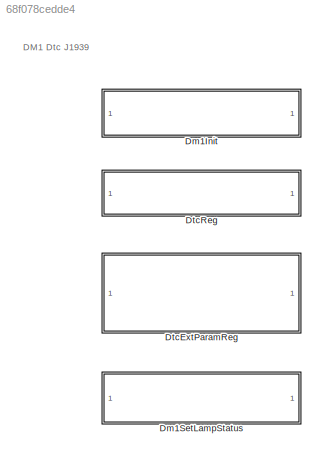
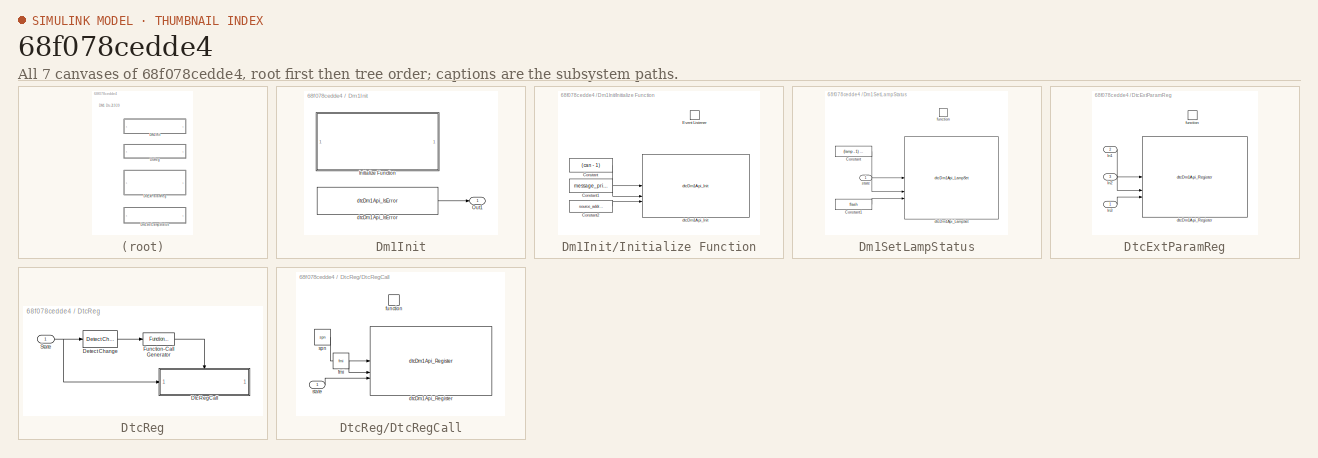
[diagram: thumbnail index - all 7 canvases of the model, root first then tree order]
MODEL slx_68f078cedde4
KIND library
CONFIG AbsTol = auto
CONFIG EnableMultiTasking = off
CONFIG FixedStep = auto
CONFIG MaxStep = auto
CONFIG MinStep = auto
CONFIG RelTol = 1e-3
CONFIG SampleTimeConstraint = Unconstrained
CONFIG SolverName = VariableStepAuto
CONFIG StartTime = 0.0
CONFIG StopTime = 10.0
BLOCK [SubSystem] Dm1Init
  TreatAsAtomicUnit = on
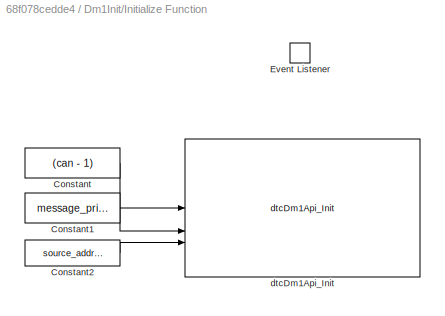
BLOCK [SubSystem] Dm1Init/Initialize Function
  TreatAsAtomicUnit = on
BLOCK [Constant] Dm1Init/Initialize Function/Constant
  OutDataTypeStr = int32
  Value = (can - 1)
BLOCK [Constant] Dm1Init/Initialize Function/Constant1
  OutDataTypeStr = uint8
  Value = message_priority
BLOCK [Constant] Dm1Init/Initialize Function/Constant2
  OutDataTypeStr = uint8
  Value = source_address
BLOCK [EventListener] Dm1Init/Initialize Function/Event Listener
  DisableCoverage = on
  EventName = reset
BLOCK [Reference] Dm1Init/Initialize Function/dtcDm1Api_Init  REF=dtc_bswapi/dtcDm1Api_Init
  SourceBlock = dtc_bswapi/dtcDm1Api_Init
  SourceType = CCaller
BLOCK [Outport] Dm1Init/Out1
  OutDataTypeStr = boolean
BLOCK [Reference] Dm1Init/dtcDm1Api_IsError  REF=dtc_bswapi/dtcDm1Api_IsError
  SourceBlock = dtc_bswapi/dtcDm1Api_IsError
  SourceType = CCaller
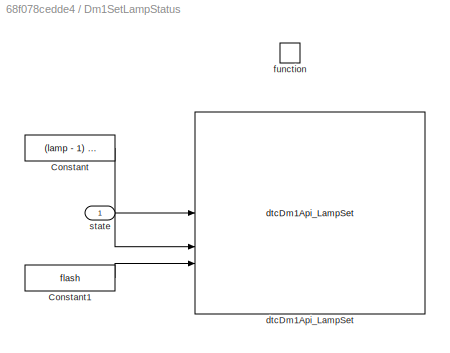
BLOCK [SubSystem] Dm1SetLampStatus
BLOCK [Constant] Dm1SetLampStatus/Constant
  OutDataTypeStr = uint8
  Value = (lamp - 1) * 2
BLOCK [Constant] Dm1SetLampStatus/Constant1
  OutDataTypeStr = uint8
  Value = flash
BLOCK [Reference] Dm1SetLampStatus/dtcDm1Api_LampSet  REF=dtc_bswapi/dtcDm1Api_LampSet
  SourceBlock = dtc_bswapi/dtcDm1Api_LampSet
  SourceType = CCaller
BLOCK [TriggerPort] Dm1SetLampStatus/function
  StatesWhenEnabling = held
  TriggerType = function-call
  VariantControl = (inherit)
BLOCK [Inport] Dm1SetLampStatus/state
BLOCK [SubSystem] DtcExtParamReg
BLOCK [Inport] DtcExtParamReg/In1
  OutDataTypeStr = uint32
  Port = 2
BLOCK [Inport] DtcExtParamReg/In2
  OutDataTypeStr = uint8
  Port = 3
BLOCK [Inport] DtcExtParamReg/In3
  OutDataTypeStr = boolean
BLOCK [Reference] DtcExtParamReg/dtcDm1Api_Register  REF=dtc_bswapi/dtcDm1Api_Register
  SourceBlock = dtc_bswapi/dtcDm1Api_Register
  SourceType = CCaller
BLOCK [TriggerPort] DtcExtParamReg/function
  StatesWhenEnabling = held
  TriggerType = function-call
  VariantControl = (inherit)
BLOCK [SubSystem] DtcReg
BLOCK [Reference] DtcReg/Detect Change  REF=simulink/Logic and Bit
Operations/Detect
Change
  SourceBlock = simulink/Logic and Bit\nOperations/Detect\nChange
  SourceType = Detect Change
BLOCK [SubSystem] DtcReg/DtcRegCall
  TreatAsAtomicUnit = on
BLOCK [Reference] DtcReg/DtcRegCall/dtcDm1Api_Register  REF=dtc_bswapi/dtcDm1Api_Register
  SourceBlock = dtc_bswapi/dtcDm1Api_Register
  SourceType = CCaller
BLOCK [Constant] DtcReg/DtcRegCall/fmi
  OutDataTypeStr = uint8
  Value = fmi
BLOCK [TriggerPort] DtcReg/DtcRegCall/function
  StatesWhenEnabling = held
  TriggerType = function-call
  VariantControl = (inherit)
BLOCK [Constant] DtcReg/DtcRegCall/spn
  OutDataTypeStr = uint32
  Value = spn
BLOCK [Inport] DtcReg/DtcRegCall/state
BLOCK [Reference] DtcReg/Function-Call Generator  REF=simulink/Ports &
Subsystems/Function-Call
Generator
  SourceBlock = simulink/Ports &\nSubsystems/Function-Call\nGenerator
  SourceType = Function-Call Generator
BLOCK [Inport] DtcReg/State
  OutDataTypeStr = boolean
ANNOTATION (root): DM1 Dtc J1939
LINE Dm1Init/Initialize Function/Constant1:1 -> Dm1Init/Initialize Function/dtcDm1Api_Init:2
LINE Dm1Init/Initialize Function/Constant2:1 -> Dm1Init/Initialize Function/dtcDm1Api_Init:3
LINE Dm1Init/Initialize Function/Constant:1 -> Dm1Init/Initialize Function/dtcDm1Api_Init:1
LINE Dm1Init/dtcDm1Api_IsError:1 -> Dm1Init/Out1:1
LINE Dm1SetLampStatus/Constant1:1 -> Dm1SetLampStatus/dtcDm1Api_LampSet:3
LINE Dm1SetLampStatus/Constant:1 -> Dm1SetLampStatus/dtcDm1Api_LampSet:1
LINE Dm1SetLampStatus/state:1 -> Dm1SetLampStatus/dtcDm1Api_LampSet:2
LINE DtcExtParamReg/In1:1 -> DtcExtParamReg/dtcDm1Api_Register:1
LINE DtcExtParamReg/In2:1 -> DtcExtParamReg/dtcDm1Api_Register:2
LINE DtcExtParamReg/In3:1 -> DtcExtParamReg/dtcDm1Api_Register:3
LINE DtcReg/Detect Change:1 -> DtcReg/Function-Call Generator:1
LINE DtcReg/DtcRegCall/fmi:1 -> DtcReg/DtcRegCall/dtcDm1Api_Register:2
LINE DtcReg/DtcRegCall/spn:1 -> DtcReg/DtcRegCall/dtcDm1Api_Register:1
LINE DtcReg/DtcRegCall/state:1 -> DtcReg/DtcRegCall/dtcDm1Api_Register:3
LINE DtcReg/Function-Call Generator:1 -> DtcReg/DtcRegCall:trigger
NET DtcReg/State:1 -> DtcReg/Detect Change:1, DtcReg/DtcRegCall:1
note: NET lines group one-source signal fan-out (src -> all destinations, sorted); 1:1 wires keep LINE
